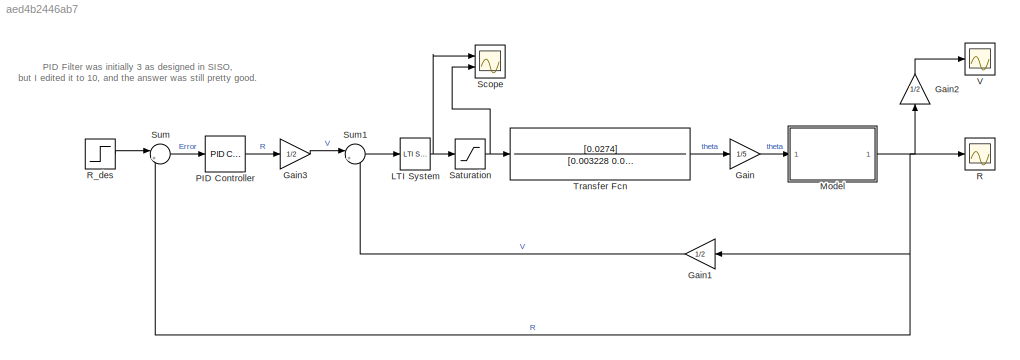
MODEL slx_aed4b2446ab7
KIND model
CONFIG AbsTol = auto
CONFIG EnableMultiTasking = off
CONFIG FixedStep = auto
CONFIG InitFcn = load('K.mat')
CONFIG MaxStep = auto
CONFIG MinStep = auto
CONFIG RelTol = 1e-3
CONFIG SampleTimeConstraint = Unconstrained
CONFIG SolverName = VariableStepAuto
CONFIG StartTime = 0.0
CONFIG StopTime = 10.0
BLOCK [Gain] Gain
  Gain = 1/5
BLOCK [Gain] Gain1
  Gain = 1/2
  NameLocation = top
BLOCK [Gain] Gain2
  Gain = 1/2
  NameLocation = right
BLOCK [Gain] Gain3
  Gain = 1/2
BLOCK [Reference] LTI System  REF=cstblocks/LTI System
  Ports = [1, 1]
  SourceBlock = cstblocks/LTI System
  SourceProductBaseCode = CT
  SourceType = LTI Block
BLOCK [ModelReference] Model
  ModelNameDialog = model.slx
  ModelReferenceVersion = 1.2
  Ports = [1, 1]
BLOCK [Reference] PID Controller  REF=slpidlib/PID Controller
  Ports = [1, 1]
  SourceBlock = slpidlib/PID Controller
  SourceProductBaseCode = SL
  SourceType = PID 1dof
BLOCK [Scope] R
  Floating = off
  NumInputPorts = 1
  Ports = [1]
  ScopeSpecificationString = Simulink.scopes.TimeScopeBlockCfg('CurrentConfiguration', extmgr.ConfigurationSet(extmgr.Configuration('Core','General UI',true),extmgr.Configuration('Core','Source UI',true),extmgr.Configuration('Sources','WiredSimulink',true,'DataLoggingVariableName','ScopeData1'),extmgr.Configuration('Visuals','Time Domain',true,'SerializedDisplays',{struct('MinYLimReal','-0.06297','MaxYLimReal','0.56671','YLab...<+1728ch>
BLOCK [Step] R_des
  After = 0.5
  SampleTime = 0
  Time = 0
BLOCK [Saturate] Saturation
  LowerLimit = -20
  UpperLimit = 20
BLOCK [Scope] Scope
  Floating = off
  NumInputPorts = 2
  Ports = [2]
  ScopeSpecificationString = Simulink.scopes.TimeScopeBlockCfg('CurrentConfiguration', extmgr.ConfigurationSet(extmgr.Configuration('Core','General UI',true),extmgr.Configuration('Core','Source UI',true),extmgr.Configuration('Sources','WiredSimulink',true,'DataLoggingVariableName','ScopeData2'),extmgr.Configuration('Visuals','Time Domain',true,'SerializedDisplays',{struct('MinYLimReal','-5.018','MaxYLimReal','6.82605','YLabel...<+1378ch>
BLOCK [Sum] Sum
  Inputs = |+-
  Ports = [2, 1]
BLOCK [Sum] Sum1
  Inputs = |+-
  Ports = [2, 1]
BLOCK [TransferFcn] Transfer Fcn
  Denominator = [0.003228 0.003508 0]
  Numerator = [0.0274]
BLOCK [Scope] V
  Floating = off
  NumInputPorts = 1
  Ports = [1]
  ScopeSpecificationString = Simulink.scopes.TimeScopeBlockCfg('CurrentConfiguration', extmgr.ConfigurationSet(extmgr.Configuration('Core','General UI',true),extmgr.Configuration('Core','Source UI',true),extmgr.Configuration('Sources','WiredSimulink',true),extmgr.Configuration('Visuals','Time Domain',true),extmgr.Configuration('Tools','Plot Navigation',true),extmgr.Configuration('Tools','Measurements',true)),'Version','2021b'...<+1ch>
ANNOTATION (root): PID Filter was initially 3 as designed in SISO, but I edited it to 10, and the answer was still pretty good.
LINE Gain1:1 -> Sum1:2
LINE Gain2:1 -> V:1
LINE Gain3:1 -> Sum1:1
LINE Gain:1 -> Model:1
NET LTI System:1 -> Saturation:1, Scope:1
NET Model:1 -> Gain1:1, Gain2:1, R:1, Sum:2
LINE PID Controller:1 -> Gain3:1
LINE R_des:1 -> Sum:1
NET Saturation:1 -> Scope:2, Transfer Fcn:1
LINE Sum1:1 -> LTI System:1
LINE Sum:1 -> PID Controller:1
LINE Transfer Fcn:1 -> Gain:1
note: NET lines group one-source signal fan-out (src -> all destinations, sorted); 1:1 wires keep LINE
